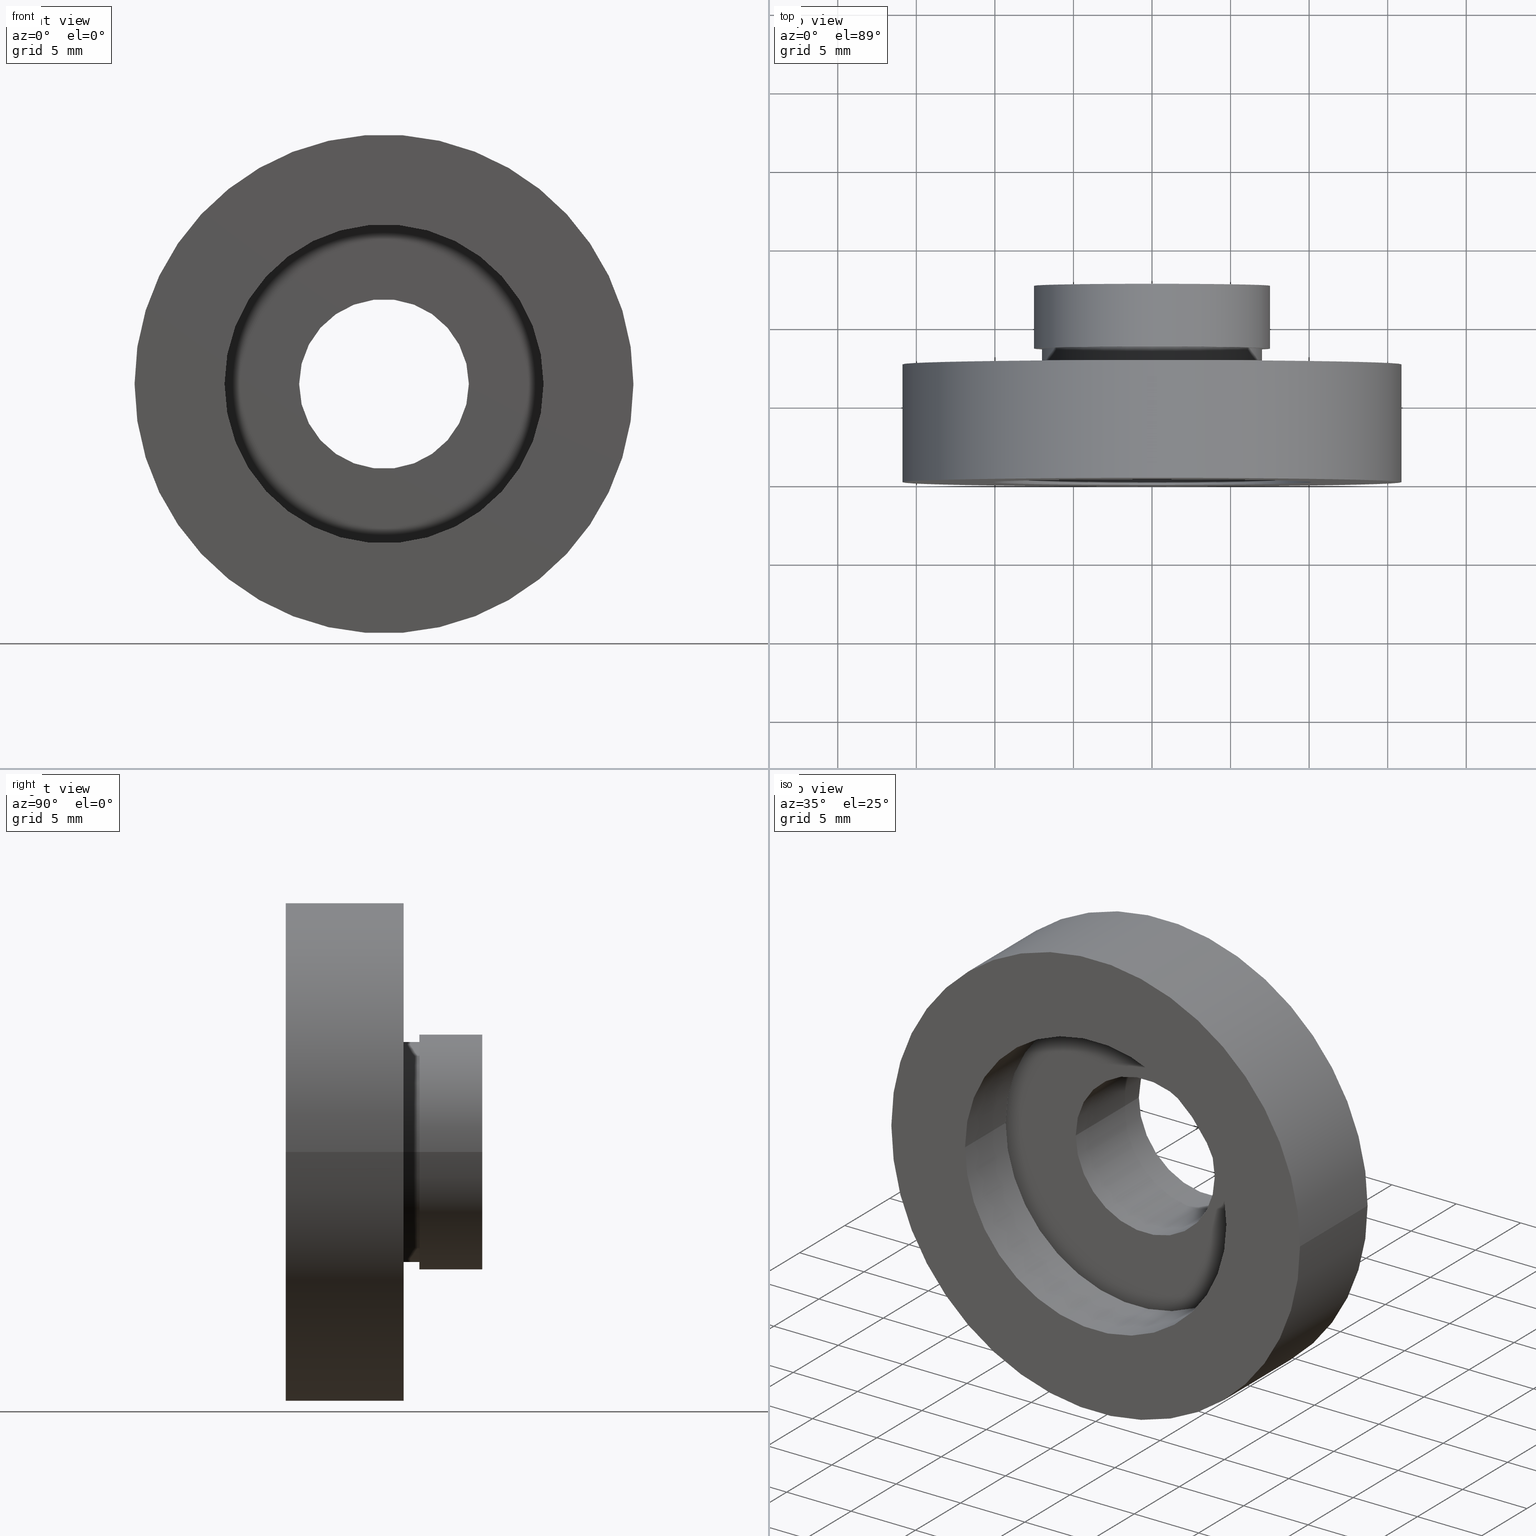
[diagram: canonical four-view strip — front | top / right | iso, engineering-drawing reading convention]
A machine part, canonical four-view strip (front | top / right | iso — engineering-drawing reading convention). The complete STEP part file that produces these views, byte-faithful:
ISO-10303-21;
HEADER;
FILE_DESCRIPTION (( 'STEP AP214' ),
    '1' );
FILE_NAME ('504125.STEP',
    '2019-10-09T01:24:13',
    ( '' ),
    ( '' ),
    'SwSTEP 2.0',
    'SolidWorks 2016',
    '' );
FILE_SCHEMA (( 'AUTOMOTIVE_DESIGN' ));
ENDSEC;

DATA;
#1 = CARTESIAN_POINT ( 'NONE',  ( 1.149455719078122500E-015, 7.500000000000000000, 0.0000000000000000000 ) ) ;
#2 = STYLED_ITEM ( 'NONE', ( #541 ), #199 ) ;
#3 = LINE ( 'NONE', #297, #235 ) ;
#4 = FILL_AREA_STYLE ('',( #527 ) ) ;
#5 = EDGE_LOOP ( 'NONE', ( #48, #357, #81, #155 ) ) ;
#6 = ORIENTED_EDGE ( 'NONE', *, *, #251, .T. ) ;
#7 = DIRECTION ( 'NONE',  ( -1.000000000000000000, -8.545435842250281000E-017, 0.0000000000000000000 ) ) ;
#8 = EDGE_LOOP ( 'NONE', ( #170, #19 ) ) ;
#9 = UNCERTAINTY_MEASURE_WITH_UNIT (LENGTH_MEASURE( 1.000000000000000100E-005 ), #234, 'distance_accuracy_value', 'NONE');
#10 = DIRECTION ( 'NONE',  ( -1.224646799147351000E-016, 1.000000000000000000, -0.0000000000000000000 ) ) ;
#11 = DIRECTION ( 'NONE',  ( -1.224646799147351000E-016, 1.000000000000000000, -0.0000000000000000000 ) ) ;
#12 = CARTESIAN_POINT ( 'NONE',  ( 7.510000000000000700, 8.500000000000000000, 0.0000000000000000000 ) ) ;
#13 = VECTOR ( 'NONE', #211, 1000.000000000000000 ) ;
#14 = ORIENTED_EDGE ( 'NONE', *, *, #287, .T. ) ;
#15 = DIRECTION ( 'NONE',  ( -1.224646799147351000E-016, 1.000000000000000000, 0.0000000000000000000 ) ) ;
#16 = AXIS2_PLACEMENT_3D ( 'NONE', #525, #579, #441 ) ;
#17 = DIRECTION ( 'NONE',  ( -1.000000000000000000, 0.0000000000000000000, 0.0000000000000000000 ) ) ;
#18 = VECTOR ( 'NONE', #553, 1000.000000000000000 ) ;
#19 = ORIENTED_EDGE ( 'NONE', *, *, #299, .F. ) ;
#20 = ORIENTED_EDGE ( 'NONE', *, *, #224, .T. ) ;
#21 = DIRECTION ( 'NONE',  ( -1.224646799147351000E-016, 1.000000000000000000, -0.0000000000000000000 ) ) ;
#22 = CARTESIAN_POINT ( 'NONE',  ( -10.14999999999999900, 4.499999999999994700, 0.0000000000000000000 ) ) ;
#23 = DIRECTION ( 'NONE',  ( -1.224646799147351000E-016, 1.000000000000000000, -0.0000000000000000000 ) ) ;
#24 = PRESENTATION_LAYER_ASSIGNMENT (  '', '', ( #151 ) ) ;
#25 = UNCERTAINTY_MEASURE_WITH_UNIT (LENGTH_MEASURE( 1.000000000000000100E-005 ), #61, 'distance_accuracy_value', 'NONE');
#26 = FACE_OUTER_BOUND ( 'NONE', #540, .T. ) ;
#27 = ORIENTED_EDGE ( 'NONE', *, *, #304, .F. ) ;
#28 = PRESENTATION_STYLE_ASSIGNMENT (( #279 ) ) ;
#29 =( GEOMETRIC_REPRESENTATION_CONTEXT ( 3 ) GLOBAL_UNCERTAINTY_ASSIGNED_CONTEXT ( ( #9 ) ) GLOBAL_UNIT_ASSIGNED_CONTEXT ( ( #234, #576, #624 ) ) REPRESENTATION_CONTEXT ( 'NONE', 'WORKASPACE' ) );
#30 = DIRECTION ( 'NONE',  ( -1.224646799147351000E-016, 1.000000000000000000, -0.0000000000000000000 ) ) ;
#31 =( NAMED_UNIT ( * ) PLANE_ANGLE_UNIT ( ) SI_UNIT ( $, .RADIAN. ) );
#32 = EDGE_CURVE ( 'NONE', #615, #133, #156, .T. ) ;
#33 =( NAMED_UNIT ( * ) SI_UNIT ( $, .STERADIAN. ) SOLID_ANGLE_UNIT ( ) );
#34 = AXIS2_PLACEMENT_3D ( 'NONE', #533, #355, #159 ) ;
#35 = CARTESIAN_POINT ( 'NONE',  ( 13.25000000000000400, 5.499999999999998200, 1.622657008870243100E-015 ) ) ;
#36 = EDGE_LOOP ( 'NONE', ( #250, #454, #408, #181 ) ) ;
#37 = MECHANICAL_DESIGN_GEOMETRIC_PRESENTATION_REPRESENTATION (  '', ( #226 ), #82 ) ;
#38 = DIRECTION ( 'NONE',  ( -1.000000000000000000, -1.224646799147350700E-016, 0.0000000000000000000 ) ) ;
#39 = CARTESIAN_POINT ( 'NONE',  ( 15.87500000000000000, 7.500000000000000000, 1.944126793646423200E-015 ) ) ;
#40 = DIRECTION ( 'NONE',  ( -1.224646799147351000E-016, 1.000000000000000000, -0.0000000000000000000 ) ) ;
#41 = COLOUR_RGB ( '',1.000000000000000000, 1.000000000000000000, 1.000000000000000000 ) ;
#42 = LINE ( 'NONE', #393, #221 ) ;
#43 = VERTEX_POINT ( 'NONE', #39 ) ;
#44 = CARTESIAN_POINT ( 'NONE',  ( 7.510000000000000700, 12.49999999999999800, 9.197097461596621700E-016 ) ) ;
#45 = AXIS2_PLACEMENT_3D ( 'NONE', #144, #432, #582 ) ;
#46 = CIRCLE ( 'NONE', #161, 10.15000000000000000 ) ;
#47 = ADVANCED_FACE ( 'NONE', ( #529, #523 ), #375, .F. ) ;
#48 = ORIENTED_EDGE ( 'NONE', *, *, #287, .F. ) ;
#49 = CIRCLE ( 'NONE', #578, 15.87499999999999600 ) ;
#50 = DIRECTION ( 'NONE',  ( -1.000000000000000000, 0.0000000000000000000, 0.0000000000000000000 ) ) ;
#51 = CARTESIAN_POINT ( 'NONE',  ( 0.0000000000000000000, 16.88601823708207700, 0.0000000000000000000 ) ) ;
#52 = DIRECTION ( 'NONE',  ( -1.000000000000000000, 0.0000000000000000000, 0.0000000000000000000 ) ) ;
#53 = CARTESIAN_POINT ( 'NONE',  ( 15.87500000000000000, 3.061616997868304100E-017, 0.0000000000000000000 ) ) ;
#54 = SURFACE_STYLE_FILL_AREA ( #269 ) ;
#55 = PRODUCT_RELATED_PRODUCT_CATEGORY ( 'part', '', ( #361 ) ) ;
#56 =( NAMED_UNIT ( * ) SI_UNIT ( $, .STERADIAN. ) SOLID_ANGLE_UNIT ( ) );
#57 = ORIENTED_EDGE ( 'NONE', *, *, #604, .T. ) ;
#58 = COLOUR_RGB ( '',1.000000000000000000, 1.000000000000000000, 1.000000000000000000 ) ;
#59 = CARTESIAN_POINT ( 'NONE',  ( 0.0000000000000000000, 16.88601823708207700, 0.0000000000000000000 ) ) ;
#60 = DIRECTION ( 'NONE',  ( -1.224646799147351000E-016, 1.000000000000000000, -0.0000000000000000000 ) ) ;
#61 =( LENGTH_UNIT ( ) NAMED_UNIT ( * ) SI_UNIT ( .MILLI., .METRE. ) );
#62 = STYLED_ITEM ( 'NONE', ( #318 ), #244 ) ;
#63 = FILL_AREA_STYLE ('',( #535 ) ) ;
#64 = CARTESIAN_POINT ( 'NONE',  ( 0.0000000000000000000, 16.88601823708207700, 0.0000000000000000000 ) ) ;
#65 = ORIENTED_EDGE ( 'NONE', *, *, #604, .F. ) ;
#66 = FACE_BOUND ( 'NONE', #80, .T. ) ;
#67 = CARTESIAN_POINT ( 'NONE',  ( -7.509999999999999800, 16.88601823708207700, 0.0000000000000000000 ) ) ;
#68 = VERTEX_POINT ( 'NONE', #514 ) ;
#69 = EDGE_LOOP ( 'NONE', ( #500, #83 ) ) ;
#70 = FILL_AREA_STYLE ('',( #252 ) ) ;
#71 = EDGE_CURVE ( 'NONE', #453, #301, #311, .T. ) ;
#72 = DIRECTION ( 'NONE',  ( 1.224646799147351000E-016, -1.000000000000000000, 0.0000000000000000000 ) ) ;
#73 = ORIENTED_EDGE ( 'NONE', *, *, #129, .F. ) ;
#74 = CARTESIAN_POINT ( 'NONE',  ( 0.0000000000000000000, 16.88601823708207700, 0.0000000000000000000 ) ) ;
#75 = EDGE_CURVE ( 'NONE', #163, #397, #49, .T. ) ;
#76 = CARTESIAN_POINT ( 'NONE',  ( 15.87500000000000000, -1.525320158307194900E-015, 1.944126793646423200E-015 ) ) ;
#77 = STYLED_ITEM ( 'NONE', ( #109 ), #440 ) ;
#78 =( NAMED_UNIT ( * ) SI_UNIT ( $, .STERADIAN. ) SOLID_ANGLE_UNIT ( ) );
#79 = CIRCLE ( 'NONE', #390, 10.15000000000000000 ) ;
#80 = EDGE_LOOP ( 'NONE', ( #20, #127 ) ) ;
#81 = ORIENTED_EDGE ( 'NONE', *, *, #419, .T. ) ;
#82 =( GEOMETRIC_REPRESENTATION_CONTEXT ( 3 ) GLOBAL_UNCERTAINTY_ASSIGNED_CONTEXT ( ( #365 ) ) GLOBAL_UNIT_ASSIGNED_CONTEXT ( ( #135, #178, #136 ) ) REPRESENTATION_CONTEXT ( 'NONE', 'WORKASPACE' ) );
#83 = ORIENTED_EDGE ( 'NONE', *, *, #71, .T. ) ;
#84 = PRESENTATION_STYLE_ASSIGNMENT (( #370 ) ) ;
#85 = SURFACE_SIDE_STYLE ('',( #549 ) ) ;
#86 = CIRCLE ( 'NONE', #430, 13.25000000000000000 ) ;
#87 = ADVANCED_BREP_SHAPE_REPRESENTATION ( '504125', ( #244, #518 ), #515 ) ;
#88 = AXIS2_PLACEMENT_3D ( 'NONE', #198, #106, #488 ) ;
#89 = DIRECTION ( 'NONE',  ( 1.224646799147351000E-016, -1.000000000000000000, 0.0000000000000000000 ) ) ;
#90 = ADVANCED_FACE ( 'NONE', ( #182 ), #613, .T. ) ;
#91 = LINE ( 'NONE', #353, #118 ) ;
#92 = ORIENTED_EDGE ( 'NONE', *, *, #253, .F. ) ;
#93 = EDGE_LOOP ( 'NONE', ( #112, #73 ) ) ;
#94 = MECHANICAL_DESIGN_GEOMETRIC_PRESENTATION_REPRESENTATION (  '', ( #555 ), #552 ) ;
#95 = CARTESIAN_POINT ( 'NONE',  ( 10.15000000000000200, 4.499999999999996400, 1.243016501134563700E-015 ) ) ;
#96 = DIRECTION ( 'NONE',  ( -1.224646799147351000E-016, 1.000000000000000000, -0.0000000000000000000 ) ) ;
#97 = ADVANCED_FACE ( 'NONE', ( #285 ), #379, .T. ) ;
#98 = EDGE_CURVE ( 'NONE', #319, #126, #412, .T. ) ;
#99 = CIRCLE ( 'NONE', #478, 10.15000000000000000 ) ;
#100 = CIRCLE ( 'NONE', #560, 15.87499999999999600 ) ;
#101 = DIRECTION ( 'NONE',  ( -1.000000000000000000, -1.224646799147351000E-016, 0.0000000000000000000 ) ) ;
#102 = FACE_OUTER_BOUND ( 'NONE', #306, .T. ) ;
#103 = ADVANCED_FACE ( 'NONE', ( #508, #369 ), #194, .F. ) ;
#104 = DIRECTION ( 'NONE',  ( -1.224646799147351000E-016, 1.000000000000000000, -0.0000000000000000000 ) ) ;
#105 = CARTESIAN_POINT ( 'NONE',  ( 2.067940818438636100E-015, 0.0000000000000000000, 0.0000000000000000000 ) ) ;
#106 = DIRECTION ( 'NONE',  ( -1.224646799147351000E-016, 1.000000000000000000, -0.0000000000000000000 ) ) ;
#107 = EDGE_CURVE ( 'NONE', #43, #387, #495, .T. ) ;
#108 = DIRECTION ( 'NONE',  ( -1.224646799147351000E-016, 1.000000000000000000, -0.0000000000000000000 ) ) ;
#109 = PRESENTATION_STYLE_ASSIGNMENT (( #509 ) ) ;
#110 =( GEOMETRIC_REPRESENTATION_CONTEXT ( 3 ) GLOBAL_UNCERTAINTY_ASSIGNED_CONTEXT ( ( #321 ) ) GLOBAL_UNIT_ASSIGNED_CONTEXT ( ( #512, #562, #78 ) ) REPRESENTATION_CONTEXT ( 'NONE', 'WORKASPACE' ) );
#111 = CARTESIAN_POINT ( 'NONE',  ( 1.516849758822328500E-015, 4.499999999999995600, 0.0000000000000000000 ) ) ;
#112 = ORIENTED_EDGE ( 'NONE', *, *, #251, .F. ) ;
#113 = SURFACE_STYLE_FILL_AREA ( #4 ) ;
#114 = AXIS2_PLACEMENT_3D ( 'NONE', #569, #40, #376 ) ;
#115 = DIRECTION ( 'NONE',  ( -1.224646799147351000E-016, 1.000000000000000000, -0.0000000000000000000 ) ) ;
#116 = CARTESIAN_POINT ( 'NONE',  ( 5.400000000000000400, 16.88601823708207700, 6.613092715395707500E-016 ) ) ;
#117 = CIRCLE ( 'NONE', #331, 5.400000000000000400 ) ;
#118 = VECTOR ( 'NONE', #203, 1000.000000000000000 ) ;
#119 = ORIENTED_EDGE ( 'NONE', *, *, #172, .T. ) ;
#120 = LINE ( 'NONE', #470, #620 ) ;
#121 =( LENGTH_UNIT ( ) NAMED_UNIT ( * ) SI_UNIT ( .MILLI., .METRE. ) );
#122 = APPLICATION_CONTEXT ( 'automotive_design' ) ;
#123 = PRESENTATION_STYLE_ASSIGNMENT (( #245 ) ) ;
#124 = AXIS2_PLACEMENT_3D ( 'NONE', #551, #72, #314 ) ;
#125 =( LENGTH_UNIT ( ) NAMED_UNIT ( * ) SI_UNIT ( .MILLI., .METRE. ) );
#126 = VERTEX_POINT ( 'NONE', #386 ) ;
#127 = ORIENTED_EDGE ( 'NONE', *, *, #550, .T. ) ;
#128 =( NAMED_UNIT ( * ) SI_UNIT ( $, .STERADIAN. ) SOLID_ANGLE_UNIT ( ) );
#129 = EDGE_CURVE ( 'NONE', #558, #329, #231, .T. ) ;
#130 = AXIS2_PLACEMENT_3D ( 'NONE', #484, #193, #195 ) ;
#131 = LINE ( 'NONE', #595, #401 ) ;
#132 = ORIENTED_EDGE ( 'NONE', *, *, #344, .F. ) ;
#133 = VERTEX_POINT ( 'NONE', #44 ) ;
#134 = AXIS2_PLACEMENT_3D ( 'NONE', #338, #225, #335 ) ;
#135 =( LENGTH_UNIT ( ) NAMED_UNIT ( * ) SI_UNIT ( .MILLI., .METRE. ) );
#136 =( NAMED_UNIT ( * ) SI_UNIT ( $, .STERADIAN. ) SOLID_ANGLE_UNIT ( ) );
#137 = UNCERTAINTY_MEASURE_WITH_UNIT (LENGTH_MEASURE( 1.000000000000000100E-005 ), #125, 'distance_accuracy_value', 'NONE');
#138 = CIRCLE ( 'NONE', #380, 5.400000000000000400 ) ;
#139 = CARTESIAN_POINT ( 'NONE',  ( -13.24999999999999800, 5.499999999999994700, 0.0000000000000000000 ) ) ;
#140 = EDGE_LOOP ( 'NONE', ( #325, #477, #187, #342 ) ) ;
#141 = AXIS2_PLACEMENT_3D ( 'NONE', #59, #305, #351 ) ;
#142 = AXIS2_PLACEMENT_3D ( 'NONE', #1, #382, #190 ) ;
#143 = CARTESIAN_POINT ( 'NONE',  ( 10.15000000000000000, 16.88601823708207700, 1.243016501134563700E-015 ) ) ;
#144 = CARTESIAN_POINT ( 'NONE',  ( 1.394385078907593200E-015, 5.499999999999996400, 0.0000000000000000000 ) ) ;
#145 = COLOUR_RGB ( '',1.000000000000000000, 1.000000000000000000, 1.000000000000000000 ) ;
#146 = CARTESIAN_POINT ( 'NONE',  ( 5.400000000000002100, 5.499999999999996400, 0.0000000000000000000 ) ) ;
#147 = EDGE_LOOP ( 'NONE', ( #310, #368 ) ) ;
#148 = ORIENTED_EDGE ( 'NONE', *, *, #236, .F. ) ;
#149 = CARTESIAN_POINT ( 'NONE',  ( 1.026991039163387500E-015, 8.500000000000000000, 0.0000000000000000000 ) ) ;
#150 = DIRECTION ( 'NONE',  ( -1.224646799147351000E-016, 1.000000000000000000, -0.0000000000000000000 ) ) ;
#151 = STYLED_ITEM ( 'NONE', ( #402 ), #87 ) ;
#152 = DIRECTION ( 'NONE',  ( -1.000000000000000000, -1.224646799147351000E-016, 0.0000000000000000000 ) ) ;
#153 = CYLINDRICAL_SURFACE ( 'NONE', #602, 10.15000000000000000 ) ;
#154 = CIRCLE ( 'NONE', #415, 5.400000000000000400 ) ;
#155 = ORIENTED_EDGE ( 'NONE', *, *, #460, .T. ) ;
#156 = CIRCLE ( 'NONE', #165, 7.509999999999999800 ) ;
#157 = CARTESIAN_POINT ( 'NONE',  ( -7.509999999999998900, 12.49999999999999500, 0.0000000000000000000 ) ) ;
#158 = PRESENTATION_LAYER_ASSIGNMENT (  '', '', ( #451 ) ) ;
#159 = DIRECTION ( 'NONE',  ( -1.000000000000000000, -1.092739197465705300E-016, 0.0000000000000000000 ) ) ;
#160 = DIRECTION ( 'NONE',  ( -1.000000000000000000, -1.309225264888156400E-016, 0.0000000000000000000 ) ) ;
#161 = AXIS2_PLACEMENT_3D ( 'NONE', #105, #492, #101 ) ;
#162 = ORIENTED_EDGE ( 'NONE', *, *, #313, .T. ) ;
#163 = VERTEX_POINT ( 'NONE', #233 ) ;
#164 = CARTESIAN_POINT ( 'NONE',  ( -13.24999999999999800, 16.88601823708207700, 0.0000000000000000000 ) ) ;
#165 = AXIS2_PLACEMENT_3D ( 'NONE', #332, #570, #431 ) ;
#166 = CARTESIAN_POINT ( 'NONE',  ( 0.0000000000000000000, 16.88601823708207700, 0.0000000000000000000 ) ) ;
#167 = EDGE_CURVE ( 'NONE', #559, #277, #120, .T. ) ;
#168 = CARTESIAN_POINT ( 'NONE',  ( -5.400000000000000400, 16.88601823708207700, 0.0000000000000000000 ) ) ;
#169 = LINE ( 'NONE', #168, #179 ) ;
#170 = ORIENTED_EDGE ( 'NONE', *, *, #186, .F. ) ;
#171 = FILL_AREA_STYLE_COLOUR ( '', #41 ) ;
#172 = EDGE_CURVE ( 'NONE', #257, #266, #227, .T. ) ;
#173 = CARTESIAN_POINT ( 'NONE',  ( 5.371323195044475300E-016, 12.49999999999999600, 0.0000000000000000000 ) ) ;
#174 = FILL_AREA_STYLE_COLOUR ( '', #577 ) ;
#175 = EDGE_CURVE ( 'NONE', #301, #453, #483, .T. ) ;
#176 = CLOSED_SHELL ( 'NONE', ( #593, #97, #90, #440, #191, #438, #471, #199, #47, #475, #103, #343, #389, #526, #242, #586, #286, #485 ) ) ;
#177 = EDGE_LOOP ( 'NONE', ( #280, #258 ) ) ;
#178 =( NAMED_UNIT ( * ) PLANE_ANGLE_UNIT ( ) SI_UNIT ( $, .RADIAN. ) );
#179 = VECTOR ( 'NONE', #366, 1000.000000000000000 ) ;
#180 = DIRECTION ( 'NONE',  ( 1.000000000000000000, 1.224646799147351000E-016, 0.0000000000000000000 ) ) ;
#181 = ORIENTED_EDGE ( 'NONE', *, *, #273, .T. ) ;
#182 = FACE_OUTER_BOUND ( 'NONE', #507, .T. ) ;
#183 = MECHANICAL_DESIGN_GEOMETRIC_PRESENTATION_REPRESENTATION (  '', ( #451 ), #218 ) ;
#184 = DIRECTION ( 'NONE',  ( -1.224646799147351000E-016, 1.000000000000000000, -0.0000000000000000000 ) ) ;
#185 = PRESENTATION_STYLE_ASSIGNMENT (( #214 ) ) ;
#186 = EDGE_CURVE ( 'NONE', #68, #208, #467, .T. ) ;
#187 = ORIENTED_EDGE ( 'NONE', *, *, #568, .T. ) ;
#188 = VERTEX_POINT ( 'NONE', #95 ) ;
#189 = PRODUCT_DEFINITION ( 'δ֪', '', #270, #510 ) ;
#190 = DIRECTION ( 'NONE',  ( -1.000000000000000000, -1.239088197126290800E-016, 0.0000000000000000000 ) ) ;
#191 = ADVANCED_FACE ( 'NONE', ( #102 ), #473, .F. ) ;
#192 = DIRECTION ( 'NONE',  ( -1.224646799147351000E-016, 1.000000000000000000, -0.0000000000000000000 ) ) ;
#193 = DIRECTION ( 'NONE',  ( -1.224646799147351000E-016, 1.000000000000000000, -0.0000000000000000000 ) ) ;
#194 = PLANE ( 'NONE',  #336 ) ;
#195 = DIRECTION ( 'NONE',  ( -1.000000000000000000, 0.0000000000000000000, 0.0000000000000000000 ) ) ;
#196 = FACE_OUTER_BOUND ( 'NONE', #600, .T. ) ;
#197 = VECTOR ( 'NONE', #531, 1000.000000000000000 ) ;
#198 = CARTESIAN_POINT ( 'NONE',  ( 1.026991039163387700E-015, 8.499999999999998200, 0.0000000000000000000 ) ) ;
#199 = ADVANCED_FACE ( 'NONE', ( #362 ), #426, .F. ) ;
#200 = ORIENTED_EDGE ( 'NONE', *, *, #213, .F. ) ;
#201 =( LENGTH_UNIT ( ) NAMED_UNIT ( * ) SI_UNIT ( .MILLI., .METRE. ) );
#202 = EDGE_CURVE ( 'NONE', #126, #319, #481, .T. ) ;
#203 = DIRECTION ( 'NONE',  ( -1.224646799147351000E-016, 1.000000000000000000, -0.0000000000000000000 ) ) ;
#204 = CARTESIAN_POINT ( 'NONE',  ( 5.371323195044475300E-016, 12.49999999999999600, 0.0000000000000000000 ) ) ;
#205 = EDGE_CURVE ( 'NONE', #494, #222, #283, .T. ) ;
#206 = CARTESIAN_POINT ( 'NONE',  ( 5.400000000000001200, 12.49999999999999600, 6.613092715395707500E-016 ) ) ;
#207 = SURFACE_STYLE_FILL_AREA ( #70 ) ;
#208 = VERTEX_POINT ( 'NONE', #346 ) ;
#209 = DIRECTION ( 'NONE',  ( -1.224646799147351000E-016, 1.000000000000000000, -0.0000000000000000000 ) ) ;
#210 = EDGE_CURVE ( 'NONE', #558, #133, #42, .T. ) ;
#211 = DIRECTION ( 'NONE',  ( -1.224646799147351000E-016, 1.000000000000000000, -0.0000000000000000000 ) ) ;
#212 = ORIENTED_EDGE ( 'NONE', *, *, #299, .T. ) ;
#213 = EDGE_CURVE ( 'NONE', #397, #43, #91, .T. ) ;
#214 = SURFACE_STYLE_USAGE ( .BOTH. , #216 ) ;
#215 = CIRCLE ( 'NONE', #521, 7.000000000000000000 ) ;
#216 = SURFACE_SIDE_STYLE ('',( #207 ) ) ;
#217 = DIRECTION ( 'NONE',  ( 1.224646799147351000E-016, -1.000000000000000000, 0.0000000000000000000 ) ) ;
#218 =( GEOMETRIC_REPRESENTATION_CONTEXT ( 3 ) GLOBAL_UNCERTAINTY_ASSIGNED_CONTEXT ( ( #429 ) ) GLOBAL_UNIT_ASSIGNED_CONTEXT ( ( #121, #498, #407 ) ) REPRESENTATION_CONTEXT ( 'NONE', 'WORKASPACE' ) );
#219 = FILL_AREA_STYLE ('',( #174 ) ) ;
#220 = CARTESIAN_POINT ( 'NONE',  ( 13.25000000000000000, 4.499999999999997300, 1.622657008870242700E-015 ) ) ;
#221 = VECTOR ( 'NONE', #150, 1000.000000000000000 ) ;
#222 = VERTEX_POINT ( 'NONE', #396 ) ;
#223 = APPLICATION_PROTOCOL_DEFINITION ( 'draft international standard', 'automotive_design', 1998, #413 ) ;
#224 = EDGE_CURVE ( 'NONE', #559, #300, #589, .T. ) ;
#225 = DIRECTION ( 'NONE',  ( -1.224646799147351000E-016, 1.000000000000000000, -0.0000000000000000000 ) ) ;
#226 = STYLED_ITEM ( 'NONE', ( #28 ), #90 ) ;
#227 = CIRCLE ( 'NONE', #45, 13.25000000000000000 ) ;
#228 = EDGE_CURVE ( 'NONE', #277, #188, #79, .T. ) ;
#229 = CARTESIAN_POINT ( 'NONE',  ( 2.067940818438636500E-015, -3.469446951953614200E-015, 0.0000000000000000000 ) ) ;
#230 = ORIENTED_EDGE ( 'NONE', *, *, #224, .F. ) ;
#231 = CIRCLE ( 'NONE', #622, 7.509999999999999800 ) ;
#232 = AXIS2_PLACEMENT_3D ( 'NONE', #434, #476, #295 ) ;
#233 = CARTESIAN_POINT ( 'NONE',  ( -15.87499999999999300, -5.413573745600033100E-015, 0.0000000000000000000 ) ) ;
#234 =( LENGTH_UNIT ( ) NAMED_UNIT ( * ) SI_UNIT ( .MILLI., .METRE. ) );
#235 = VECTOR ( 'NONE', #447, 1000.000000000000000 ) ;
#236 = EDGE_CURVE ( 'NONE', #208, #319, #3, .T. ) ;
#237 = ORIENTED_EDGE ( 'NONE', *, *, #460, .F. ) ;
#238 = ORIENTED_EDGE ( 'NONE', *, *, #210, .T. ) ;
#239 = DIRECTION ( 'NONE',  ( -1.224646799147351000E-016, 1.000000000000000000, -0.0000000000000000000 ) ) ;
#240 = ORIENTED_EDGE ( 'NONE', *, *, #513, .F. ) ;
#241 = CARTESIAN_POINT ( 'NONE',  ( 0.0000000000000000000, 16.88601823708207700, 0.0000000000000000000 ) ) ;
#242 = ADVANCED_FACE ( 'NONE', ( #275, #547 ), #248, .F. ) ;
#243 = SURFACE_SIDE_STYLE ('',( #572 ) ) ;
#244 = MANIFOLD_SOLID_BREP ( '��ת1', #176 ) ;
#245 = SURFACE_STYLE_USAGE ( .BOTH. , #293 ) ;
#246 = CARTESIAN_POINT ( 'NONE',  ( 2.067940818438636100E-015, 0.0000000000000000000, 0.0000000000000000000 ) ) ;
#247 = LINE ( 'NONE', #609, #469 ) ;
#248 = PLANE ( 'NONE',  #424 ) ;
#249 = ORIENTED_EDGE ( 'NONE', *, *, #228, .T. ) ;
#250 = ORIENTED_EDGE ( 'NONE', *, *, #546, .F. ) ;
#251 = EDGE_CURVE ( 'NONE', #329, #558, #463, .T. ) ;
#252 = FILL_AREA_STYLE_COLOUR ( '', #341 ) ;
#253 = EDGE_CURVE ( 'NONE', #300, #188, #538, .T. ) ;
#254 = CARTESIAN_POINT ( 'NONE',  ( -13.24999999999999600, 4.499999999999993800, 0.0000000000000000000 ) ) ;
#255 = CYLINDRICAL_SURFACE ( 'NONE', #130, 7.000000000000000000 ) ;
#256 = DIRECTION ( 'NONE',  ( -1.224646799147351000E-016, 1.000000000000000000, -0.0000000000000000000 ) ) ;
#257 = VERTEX_POINT ( 'NONE', #35 ) ;
#258 = ORIENTED_EDGE ( 'NONE', *, *, #98, .T. ) ;
#259 = DIRECTION ( 'NONE',  ( -1.000000000000000000, -2.309884788251407900E-016, 0.0000000000000000000 ) ) ;
#260 = AXIS2_PLACEMENT_3D ( 'NONE', #278, #89, #180 ) ;
#261 = MECHANICAL_DESIGN_GEOMETRIC_PRESENTATION_REPRESENTATION (  '', ( #62 ), #395 ) ;
#262 = DIRECTION ( 'NONE',  ( -1.000000000000000000, 0.0000000000000000000, 0.0000000000000000000 ) ) ;
#263 = COLOUR_RGB ( '',1.000000000000000000, 1.000000000000000000, 1.000000000000000000 ) ;
#264 = CYLINDRICAL_SURFACE ( 'NONE', #474, 5.400000000000000400 ) ;
#265 = DIRECTION ( 'NONE',  ( -1.224646799147351000E-016, 1.000000000000000000, -0.0000000000000000000 ) ) ;
#266 = VERTEX_POINT ( 'NONE', #139 ) ;
#267 = EDGE_LOOP ( 'NONE', ( #619, #388 ) ) ;
#268 = SURFACE_SIDE_STYLE ('',( #274 ) ) ;
#269 = FILL_AREA_STYLE ('',( #171 ) ) ;
#270 = PRODUCT_DEFINITION_FORMATION_WITH_SPECIFIED_SOURCE ( '�κ�', '', #361, .NOT_KNOWN. ) ;
#271 = DIRECTION ( 'NONE',  ( 0.0000000000000000000, 0.0000000000000000000, 1.000000000000000000 ) ) ;
#272 =( NAMED_UNIT ( * ) SI_UNIT ( $, .STERADIAN. ) SOLID_ANGLE_UNIT ( ) );
#273 = EDGE_CURVE ( 'NONE', #266, #257, #86, .T. ) ;
#274 = SURFACE_STYLE_FILL_AREA ( #219 ) ;
#275 = FACE_OUTER_BOUND ( 'NONE', #93, .T. ) ;
#276 = ORIENTED_EDGE ( 'NONE', *, *, #339, .T. ) ;
#277 = VERTEX_POINT ( 'NONE', #22 ) ;
#278 = CARTESIAN_POINT ( 'NONE',  ( 10.15000000000000200, 4.499999999999997300, 0.0000000000000000000 ) ) ;
#279 = SURFACE_STYLE_USAGE ( .BOTH. , #85 ) ;
#280 = ORIENTED_EDGE ( 'NONE', *, *, #202, .T. ) ;
#281 = AXIS2_PLACEMENT_3D ( 'NONE', #74, #265, #557 ) ;
#282 = CARTESIAN_POINT ( 'NONE',  ( 0.0000000000000000000, 16.88601823708207700, 0.0000000000000000000 ) ) ;
#283 = CIRCLE ( 'NONE', #294, 5.400000000000000400 ) ;
#284 = ORIENTED_EDGE ( 'NONE', *, *, #107, .F. ) ;
#285 = FACE_OUTER_BOUND ( 'NONE', #612, .T. ) ;
#286 = ADVANCED_FACE ( 'NONE', ( #445, #556 ), #456, .F. ) ;
#287 = EDGE_CURVE ( 'NONE', #583, #494, #452, .T. ) ;
#288 = DIRECTION ( 'NONE',  ( -1.000000000000000000, 0.0000000000000000000, 0.0000000000000000000 ) ) ;
#289 = FACE_OUTER_BOUND ( 'NONE', #466, .T. ) ;
#290 = MECHANICAL_DESIGN_GEOMETRIC_PRESENTATION_REPRESENTATION (  '', ( #77 ), #110 ) ;
#291 = EDGE_LOOP ( 'NONE', ( #465, #623 ) ) ;
#292 = DIRECTION ( 'NONE',  ( -1.000000000000000000, -2.309884788251407900E-016, 0.0000000000000000000 ) ) ;
#293 = SURFACE_SIDE_STYLE ('',( #480 ) ) ;
#294 = AXIS2_PLACEMENT_3D ( 'NONE', #204, #10, #539 ) ;
#295 = DIRECTION ( 'NONE',  ( -1.000000000000000000, -1.309225264888156400E-016, 0.0000000000000000000 ) ) ;
#296 = DIRECTION ( 'NONE',  ( -1.000000000000000000, 0.0000000000000000000, 0.0000000000000000000 ) ) ;
#297 = CARTESIAN_POINT ( 'NONE',  ( 7.000000000000000000, 16.88601823708207700, 8.572527594031473200E-016 ) ) ;
#298 = DIRECTION ( 'NONE',  ( -1.000000000000000000, -1.224646799147351000E-016, 0.0000000000000000000 ) ) ;
#299 = EDGE_CURVE ( 'NONE', #208, #68, #215, .T. ) ;
#300 = VERTEX_POINT ( 'NONE', #307 ) ;
#301 = VERTEX_POINT ( 'NONE', #254 ) ;
#302 = DIRECTION ( 'NONE',  ( -1.000000000000000000, 0.0000000000000000000, 0.0000000000000000000 ) ) ;
#303 = FILL_AREA_STYLE_COLOUR ( '', #263 ) ;
#304 = EDGE_CURVE ( 'NONE', #397, #163, #100, .T. ) ;
#305 = DIRECTION ( 'NONE',  ( -1.224646799147351000E-016, 1.000000000000000000, -0.0000000000000000000 ) ) ;
#306 = EDGE_LOOP ( 'NONE', ( #421, #516, #119, #132 ) ) ;
#307 = CARTESIAN_POINT ( 'NONE',  ( 10.15000000000000200, 1.243016501134561300E-015, 1.243016501134563700E-015 ) ) ;
#308 = SURFACE_STYLE_FILL_AREA ( #320 ) ;
#309 = LINE ( 'NONE', #67, #418 ) ;
#310 = ORIENTED_EDGE ( 'NONE', *, *, #513, .T. ) ;
#311 = CIRCLE ( 'NONE', #134, 13.24999999999999800 ) ;
#312 = CARTESIAN_POINT ( 'NONE',  ( 5.400000000000001200, 12.49999999999999600, 0.0000000000000000000 ) ) ;
#313 = EDGE_CURVE ( 'NONE', #133, #615, #618, .T. ) ;
#314 = DIRECTION ( 'NONE',  ( 1.000000000000000000, 1.224646799147351000E-016, 0.0000000000000000000 ) ) ;
#315 = CARTESIAN_POINT ( 'NONE',  ( 7.000000000000000900, 8.500000000000000000, 8.572527594031473200E-016 ) ) ;
#316 = DIRECTION ( 'NONE',  ( -1.224646799147351000E-016, 1.000000000000000000, -0.0000000000000000000 ) ) ;
#317 = CYLINDRICAL_SURFACE ( 'NONE', #385, 7.509999999999999800 ) ;
#318 = PRESENTATION_STYLE_ASSIGNMENT (( #592 ) ) ;
#319 = VERTEX_POINT ( 'NONE', #315 ) ;
#320 = FILL_AREA_STYLE ('',( #461 ) ) ;
#321 = UNCERTAINTY_MEASURE_WITH_UNIT (LENGTH_MEASURE( 1.000000000000000100E-005 ), #512, 'distance_accuracy_value', 'NONE');
#322 = DIRECTION ( 'NONE',  ( -1.224646799147351000E-016, 1.000000000000000000, -0.0000000000000000000 ) ) ;
#323 = AXIS2_PLACEMENT_3D ( 'NONE', #246, #443, #491 ) ;
#324 = DIRECTION ( 'NONE',  ( -1.000000000000000000, 0.0000000000000000000, 0.0000000000000000000 ) ) ;
#325 = ORIENTED_EDGE ( 'NONE', *, *, #550, .F. ) ;
#326 = FACE_OUTER_BOUND ( 'NONE', #140, .T. ) ;
#327 = FACE_OUTER_BOUND ( 'NONE', #5, .T. ) ;
#328 = ORIENTED_EDGE ( 'NONE', *, *, #186, .T. ) ;
#329 = VERTEX_POINT ( 'NONE', #496 ) ;
#330 = APPLICATION_PROTOCOL_DEFINITION ( 'draft international standard', 'automotive_design', 1998, #122 ) ;
#331 = AXIS2_PLACEMENT_3D ( 'NONE', #173, #30, #262 ) ;
#332 = CARTESIAN_POINT ( 'NONE',  ( 5.371323195044473300E-016, 12.49999999999999600, 0.0000000000000000000 ) ) ;
#333 = AXIS2_PLACEMENT_3D ( 'NONE', #340, #192, #50 ) ;
#334 = CYLINDRICAL_SURFACE ( 'NONE', #281, 5.400000000000000400 ) ;
#335 = DIRECTION ( 'NONE',  ( -1.000000000000000000, -1.309225264888156400E-016, 0.0000000000000000000 ) ) ;
#336 = AXIS2_PLACEMENT_3D ( 'NONE', #146, #534, #587 ) ;
#337 = DIRECTION ( 'NONE',  ( -1.000000000000000000, 0.0000000000000000000, 0.0000000000000000000 ) ) ;
#338 = CARTESIAN_POINT ( 'NONE',  ( 1.516849758822328500E-015, 4.499999999999995600, 0.0000000000000000000 ) ) ;
#339 = EDGE_CURVE ( 'NONE', #329, #615, #309, .T. ) ;
#340 = CARTESIAN_POINT ( 'NONE',  ( 0.0000000000000000000, 16.88601823708207700, 0.0000000000000000000 ) ) ;
#341 = COLOUR_RGB ( '',1.000000000000000000, 1.000000000000000000, 1.000000000000000000 ) ;
#342 = ORIENTED_EDGE ( 'NONE', *, *, #167, .F. ) ;
#343 = ADVANCED_FACE ( 'NONE', ( #327 ), #264, .F. ) ;
#344 = EDGE_CURVE ( 'NONE', #301, #266, #520, .T. ) ;
#345 = PRODUCT_DEFINITION_SHAPE ( 'NONE', 'NONE',  #189 ) ;
#346 = CARTESIAN_POINT ( 'NONE',  ( 7.000000000000000900, 7.500000000000000900, 8.572527594031473200E-016 ) ) ;
#347 = CYLINDRICAL_SURFACE ( 'NONE', #590, 15.87500000000000000 ) ;
#348 = CARTESIAN_POINT ( 'NONE',  ( 1.026991039163387700E-015, 8.499999999999998200, 0.0000000000000000000 ) ) ;
#349 =( NAMED_UNIT ( * ) SI_UNIT ( $, .STERADIAN. ) SOLID_ANGLE_UNIT ( ) );
#350 =( LENGTH_UNIT ( ) NAMED_UNIT ( * ) SI_UNIT ( .MILLI., .METRE. ) );
#351 = DIRECTION ( 'NONE',  ( -1.000000000000000000, -2.185478394931410600E-016, 0.0000000000000000000 ) ) ;
#352 =( NAMED_UNIT ( * ) PLANE_ANGLE_UNIT ( ) SI_UNIT ( $, .RADIAN. ) );
#353 = CARTESIAN_POINT ( 'NONE',  ( 15.87500000000000000, 16.88601823708208000, 1.944126793646423200E-015 ) ) ;
#354 = CIRCLE ( 'NONE', #34, 15.87500000000000000 ) ;
#355 = DIRECTION ( 'NONE',  ( -1.224646799147351000E-016, 1.000000000000000000, -0.0000000000000000000 ) ) ;
#356 = ORIENTED_EDGE ( 'NONE', *, *, #213, .T. ) ;
#357 = ORIENTED_EDGE ( 'NONE', *, *, #383, .F. ) ;
#358 = PLANE ( 'NONE',  #433 ) ;
#359 = CARTESIAN_POINT ( 'NONE',  ( 2.067940818438636500E-015, -3.469446951953614200E-015, 0.0000000000000000000 ) ) ;
#360 = PRESENTATION_LAYER_ASSIGNMENT (  '', '', ( #457 ) ) ;
#361 = PRODUCT ( '504125', '504125', '', ( #563 ) ) ;
#362 = FACE_OUTER_BOUND ( 'NONE', #517, .T. ) ;
#363 = CARTESIAN_POINT ( 'NONE',  ( 1.394385078907593200E-015, 5.499999999999996400, 0.0000000000000000000 ) ) ;
#364 = PRESENTATION_LAYER_ASSIGNMENT (  '', '', ( #62 ) ) ;
#365 = UNCERTAINTY_MEASURE_WITH_UNIT (LENGTH_MEASURE( 1.000000000000000100E-005 ), #135, 'distance_accuracy_value', 'NONE');
#366 = DIRECTION ( 'NONE',  ( -1.224646799147351000E-016, 1.000000000000000000, -0.0000000000000000000 ) ) ;
#367 = EDGE_CURVE ( 'NONE', #583, #501, #138, .T. ) ;
#368 = ORIENTED_EDGE ( 'NONE', *, *, #107, .T. ) ;
#369 = FACE_BOUND ( 'NONE', #291, .T. ) ;
#370 = SURFACE_STYLE_USAGE ( .BOTH. , #414 ) ;
#371 = AXIS2_PLACEMENT_3D ( 'NONE', #282, #468, #337 ) ;
#372 = DIRECTION ( 'NONE',  ( 1.000000000000000000, 0.0000000000000000000, 0.0000000000000000000 ) ) ;
#373 = EDGE_LOOP ( 'NONE', ( #446, #581 ) ) ;
#374 = ORIENTED_EDGE ( 'NONE', *, *, #236, .T. ) ;
#375 = PLANE ( 'NONE',  #260 ) ;
#376 = DIRECTION ( 'NONE',  ( -1.000000000000000000, 0.0000000000000000000, 0.0000000000000000000 ) ) ;
#377 = FACE_OUTER_BOUND ( 'NONE', #36, .T. ) ;
#378 = ORIENTED_EDGE ( 'NONE', *, *, #75, .F. ) ;
#379 = CYLINDRICAL_SURFACE ( 'NONE', #371, 7.000000000000000000 ) ;
#380 = AXIS2_PLACEMENT_3D ( 'NONE', #400, #455, #497 ) ;
#381 = ORIENTED_EDGE ( 'NONE', *, *, #304, .T. ) ;
#382 = DIRECTION ( 'NONE',  ( -1.224646799147351000E-016, 1.000000000000000000, -0.0000000000000000000 ) ) ;
#383 = EDGE_CURVE ( 'NONE', #501, #583, #154, .T. ) ;
#384 = FACE_OUTER_BOUND ( 'NONE', #436, .T. ) ;
#385 = AXIS2_PLACEMENT_3D ( 'NONE', #64, #594, #296 ) ;
#386 = CARTESIAN_POINT ( 'NONE',  ( -6.999999999999999100, 8.500000000000000000, 0.0000000000000000000 ) ) ;
#387 = VERTEX_POINT ( 'NONE', #554 ) ;
#388 = ORIENTED_EDGE ( 'NONE', *, *, #568, .F. ) ;
#389 = ADVANCED_FACE ( 'NONE', ( #506, #26 ), #358, .F. ) ;
#390 = AXIS2_PLACEMENT_3D ( 'NONE', #111, #60, #543 ) ;
#391 = DIRECTION ( 'NONE',  ( -1.224646799147351000E-016, 1.000000000000000000, -0.0000000000000000000 ) ) ;
#392 = CARTESIAN_POINT ( 'NONE',  ( 13.24999999999999800, 16.88601823708207700, 1.622657008870242700E-015 ) ) ;
#393 = CARTESIAN_POINT ( 'NONE',  ( 7.509999999999999800, 16.88601823708207700, 9.197097461596621700E-016 ) ) ;
#394 = DIRECTION ( 'NONE',  ( -1.000000000000000000, -2.185478394931410600E-016, 0.0000000000000000000 ) ) ;
#395 =( GEOMETRIC_REPRESENTATION_CONTEXT ( 3 ) GLOBAL_UNCERTAINTY_ASSIGNED_CONTEXT ( ( #537 ) ) GLOBAL_UNIT_ASSIGNED_CONTEXT ( ( #350, #352, #56 ) ) REPRESENTATION_CONTEXT ( 'NONE', 'WORKASPACE' ) );
#396 = CARTESIAN_POINT ( 'NONE',  ( -5.399999999999999500, 12.49999999999999600, 0.0000000000000000000 ) ) ;
#397 = VERTEX_POINT ( 'NONE', #76 ) ;
#398 = FILL_AREA_STYLE ('',( #303 ) ) ;
#399 = CARTESIAN_POINT ( 'NONE',  ( -10.14999999999999900, -1.243016501134561300E-015, 0.0000000000000000000 ) ) ;
#400 = CARTESIAN_POINT ( 'NONE',  ( 1.394385078907593000E-015, 5.499999999999998200, 0.0000000000000000000 ) ) ;
#401 = VECTOR ( 'NONE', #536, 1000.000000000000000 ) ;
#402 = PRESENTATION_STYLE_ASSIGNMENT (( #565 ) ) ;
#403 = AXIS2_PLACEMENT_3D ( 'NONE', #479, #184, #288 ) ;
#404 = ORIENTED_EDGE ( 'NONE', *, *, #75, .T. ) ;
#405 = ORIENTED_EDGE ( 'NONE', *, *, #167, .T. ) ;
#406 = CARTESIAN_POINT ( 'NONE',  ( 1.149455719078122500E-015, 7.500000000000000000, 0.0000000000000000000 ) ) ;
#407 =( NAMED_UNIT ( * ) SI_UNIT ( $, .STERADIAN. ) SOLID_ANGLE_UNIT ( ) );
#408 = ORIENTED_EDGE ( 'NONE', *, *, #344, .T. ) ;
#409 = COLOUR_RGB ( '',1.000000000000000000, 1.000000000000000000, 1.000000000000000000 ) ;
#410 = DIRECTION ( 'NONE',  ( -1.224646799147351000E-016, 1.000000000000000000, -0.0000000000000000000 ) ) ;
#411 = ORIENTED_EDGE ( 'NONE', *, *, #462, .T. ) ;
#412 = CIRCLE ( 'NONE', #614, 7.000000000000000000 ) ;
#413 = APPLICATION_CONTEXT ( 'automotive_design' ) ;
#414 = SURFACE_SIDE_STYLE ('',( #54 ) ) ;
#415 = AXIS2_PLACEMENT_3D ( 'NONE', #601, #209, #564 ) ;
#416 = DIRECTION ( 'NONE',  ( 1.000000000000000000, 1.224646799147351000E-016, 0.0000000000000000000 ) ) ;
#417 = CYLINDRICAL_SURFACE ( 'NONE', #141, 15.87500000000000000 ) ;
#418 = VECTOR ( 'NONE', #115, 1000.000000000000000 ) ;
#419 = EDGE_CURVE ( 'NONE', #501, #222, #169, .T. ) ;
#420 = EDGE_LOOP ( 'NONE', ( #378, #27 ) ) ;
#421 = ORIENTED_EDGE ( 'NONE', *, *, #71, .F. ) ;
#422 = PRESENTATION_LAYER_ASSIGNMENT (  '', '', ( #555 ) ) ;
#423 = FILL_AREA_STYLE ('',( #519 ) ) ;
#424 = AXIS2_PLACEMENT_3D ( 'NONE', #12, #597, #152 ) ;
#425 = ORIENTED_EDGE ( 'NONE', *, *, #419, .F. ) ;
#426 = CYLINDRICAL_SURFACE ( 'NONE', #333, 10.15000000000000000 ) ;
#427 = ORIENTED_EDGE ( 'NONE', *, *, #129, .T. ) ;
#428 = ORIENTED_EDGE ( 'NONE', *, *, #32, .T. ) ;
#429 = UNCERTAINTY_MEASURE_WITH_UNIT (LENGTH_MEASURE( 1.000000000000000100E-005 ), #121, 'distance_accuracy_value', 'NONE');
#430 = AXIS2_PLACEMENT_3D ( 'NONE', #363, #23, #160 ) ;
#431 = DIRECTION ( 'NONE',  ( -1.000000000000000000, -2.309884788251407900E-016, 0.0000000000000000000 ) ) ;
#432 = DIRECTION ( 'NONE',  ( -1.224646799147351000E-016, 1.000000000000000000, -0.0000000000000000000 ) ) ;
#433 = AXIS2_PLACEMENT_3D ( 'NONE', #312, #217, #416 ) ;
#434 = CARTESIAN_POINT ( 'NONE',  ( 1.516849758822328500E-015, 4.499999999999995600, 0.0000000000000000000 ) ) ;
#435 = EDGE_LOOP ( 'NONE', ( #237, #573 ) ) ;
#436 = EDGE_LOOP ( 'NONE', ( #148, #212, #411, #472 ) ) ;
#437 = EDGE_LOOP ( 'NONE', ( #200, #381, #57, #284 ) ) ;
#438 = ADVANCED_FACE ( 'NONE', ( #326 ), #153, .F. ) ;
#439 = PRESENTATION_LAYER_ASSIGNMENT (  '', '', ( #2 ) ) ;
#440 = ADVANCED_FACE ( 'NONE', ( #571 ), #334, .F. ) ;
#441 = DIRECTION ( 'NONE',  ( -1.000000000000000000, -1.092739197465705300E-016, 0.0000000000000000000 ) ) ;
#442 = CARTESIAN_POINT ( 'NONE',  ( 5.400000000000002100, 5.499999999999999100, 6.613092715395707500E-016 ) ) ;
#443 = DIRECTION ( 'NONE',  ( -1.224646799147351000E-016, 1.000000000000000000, -0.0000000000000000000 ) ) ;
#444 = VECTOR ( 'NONE', #108, 1000.000000000000000 ) ;
#445 = FACE_BOUND ( 'NONE', #8, .T. ) ;
#446 = ORIENTED_EDGE ( 'NONE', *, *, #273, .F. ) ;
#447 = DIRECTION ( 'NONE',  ( -1.224646799147351000E-016, 1.000000000000000000, -0.0000000000000000000 ) ) ;
#448 = ORIENTED_EDGE ( 'NONE', *, *, #205, .T. ) ;
#449 = CARTESIAN_POINT ( 'NONE',  ( 1.026991039163387500E-015, 8.500000000000000000, 0.0000000000000000000 ) ) ;
#450 = CARTESIAN_POINT ( 'NONE',  ( -5.399999999999998600, 5.499999999999997300, 0.0000000000000000000 ) ) ;
#451 = STYLED_ITEM ( 'NONE', ( #185 ), #343 ) ;
#452 = LINE ( 'NONE', #116, #18 ) ;
#453 = VERTEX_POINT ( 'NONE', #220 ) ;
#454 = ORIENTED_EDGE ( 'NONE', *, *, #175, .F. ) ;
#455 = DIRECTION ( 'NONE',  ( -1.224646799147351000E-016, 1.000000000000000000, -0.0000000000000000000 ) ) ;
#456 = PLANE ( 'NONE',  #124 ) ;
#457 = STYLED_ITEM ( 'NONE', ( #123 ), #526 ) ;
#458 = CYLINDRICAL_SURFACE ( 'NONE', #610, 13.24999999999999800 ) ;
#459 = MECHANICAL_DESIGN_GEOMETRIC_PRESENTATION_REPRESENTATION (  '', ( #151 ), #486 ) ;
#460 = EDGE_CURVE ( 'NONE', #222, #494, #117, .T. ) ;
#461 = FILL_AREA_STYLE_COLOUR ( '', #409 ) ;
#462 = EDGE_CURVE ( 'NONE', #68, #126, #247, .T. ) ;
#463 = CIRCLE ( 'NONE', #88, 7.509999999999999800 ) ;
#464 = SURFACE_SIDE_STYLE ('',( #308 ) ) ;
#465 = ORIENTED_EDGE ( 'NONE', *, *, #383, .T. ) ;
#466 = EDGE_LOOP ( 'NONE', ( #404, #356, #240, #65 ) ) ;
#467 = CIRCLE ( 'NONE', #142, 7.000000000000000000 ) ;
#468 = DIRECTION ( 'NONE',  ( -1.224646799147351000E-016, 1.000000000000000000, -0.0000000000000000000 ) ) ;
#469 = VECTOR ( 'NONE', #322, 1000.000000000000000 ) ;
#470 = CARTESIAN_POINT ( 'NONE',  ( -10.15000000000000000, 16.88601823708207700, 0.0000000000000000000 ) ) ;
#471 = ADVANCED_FACE ( 'NONE', ( #617, #66 ), #607, .F. ) ;
#472 = ORIENTED_EDGE ( 'NONE', *, *, #98, .F. ) ;
#473 = CYLINDRICAL_SURFACE ( 'NONE', #403, 13.24999999999999800 ) ;
#474 = AXIS2_PLACEMENT_3D ( 'NONE', #166, #503, #17 ) ;
#475 = ADVANCED_FACE ( 'NONE', ( #377 ), #458, .F. ) ;
#476 = DIRECTION ( 'NONE',  ( -1.224646799147351000E-016, 1.000000000000000000, -0.0000000000000000000 ) ) ;
#477 = ORIENTED_EDGE ( 'NONE', *, *, #253, .T. ) ;
#478 = AXIS2_PLACEMENT_3D ( 'NONE', #542, #544, #7 ) ;
#479 = CARTESIAN_POINT ( 'NONE',  ( 0.0000000000000000000, 16.88601823708207700, 0.0000000000000000000 ) ) ;
#480 = SURFACE_STYLE_FILL_AREA ( #398 ) ;
#481 = CIRCLE ( 'NONE', #530, 7.000000000000000000 ) ;
#482 = ORIENTED_EDGE ( 'NONE', *, *, #462, .F. ) ;
#483 = CIRCLE ( 'NONE', #232, 13.24999999999999800 ) ;
#484 = CARTESIAN_POINT ( 'NONE',  ( 0.0000000000000000000, 16.88601823708207700, 0.0000000000000000000 ) ) ;
#485 = ADVANCED_FACE ( 'NONE', ( #505 ), #347, .T. ) ;
#486 =( GEOMETRIC_REPRESENTATION_CONTEXT ( 3 ) GLOBAL_UNCERTAINTY_ASSIGNED_CONTEXT ( ( #608 ) ) GLOBAL_UNIT_ASSIGNED_CONTEXT ( ( #511, #611, #33 ) ) REPRESENTATION_CONTEXT ( 'NONE', 'WORKASPACE' ) );
#487 = DIRECTION ( 'NONE',  ( -1.224646799147351000E-016, 1.000000000000000000, -0.0000000000000000000 ) ) ;
#488 = DIRECTION ( 'NONE',  ( -1.000000000000000000, -2.309884788251407900E-016, 0.0000000000000000000 ) ) ;
#489 =( NAMED_UNIT ( * ) PLANE_ANGLE_UNIT ( ) SI_UNIT ( $, .RADIAN. ) );
#490 = PRESENTATION_LAYER_ASSIGNMENT (  '', '', ( #226 ) ) ;
#491 = DIRECTION ( 'NONE',  ( -1.000000000000000000, -1.224646799147351000E-016, 0.0000000000000000000 ) ) ;
#492 = DIRECTION ( 'NONE',  ( -1.224646799147351000E-016, 1.000000000000000000, -0.0000000000000000000 ) ) ;
#493 = SHAPE_DEFINITION_REPRESENTATION ( #345, #87 ) ;
#494 = VERTEX_POINT ( 'NONE', #206 ) ;
#495 = CIRCLE ( 'NONE', #16, 15.87500000000000000 ) ;
#496 = CARTESIAN_POINT ( 'NONE',  ( -7.509999999999998900, 8.499999999999996400, 0.0000000000000000000 ) ) ;
#497 = DIRECTION ( 'NONE',  ( -1.000000000000000000, -1.606225440719265600E-016, 0.0000000000000000000 ) ) ;
#498 =( NAMED_UNIT ( * ) PLANE_ANGLE_UNIT ( ) SI_UNIT ( $, .RADIAN. ) );
#499 = MECHANICAL_DESIGN_GEOMETRIC_PRESENTATION_REPRESENTATION (  '', ( #2 ), #29 ) ;
#500 = ORIENTED_EDGE ( 'NONE', *, *, #175, .T. ) ;
#501 = VERTEX_POINT ( 'NONE', #450 ) ;
#502 = CARTESIAN_POINT ( 'NONE',  ( 5.371323195044473300E-016, 12.49999999999999600, 0.0000000000000000000 ) ) ;
#503 = DIRECTION ( 'NONE',  ( -1.224646799147351000E-016, 1.000000000000000000, -0.0000000000000000000 ) ) ;
#504 =( NAMED_UNIT ( * ) PLANE_ANGLE_UNIT ( ) SI_UNIT ( $, .RADIAN. ) );
#505 = FACE_OUTER_BOUND ( 'NONE', #437, .T. ) ;
#506 = FACE_BOUND ( 'NONE', #435, .T. ) ;
#507 = EDGE_LOOP ( 'NONE', ( #6, #238, #528, #599 ) ) ;
#508 = FACE_OUTER_BOUND ( 'NONE', #373, .T. ) ;
#509 = SURFACE_STYLE_USAGE ( .BOTH. , #464 ) ;
#510 = PRODUCT_DEFINITION_CONTEXT ( 'detailed design', #122, 'design' ) ;
#511 =( LENGTH_UNIT ( ) NAMED_UNIT ( * ) SI_UNIT ( .MILLI., .METRE. ) );
#512 =( LENGTH_UNIT ( ) NAMED_UNIT ( * ) SI_UNIT ( .MILLI., .METRE. ) );
#513 = EDGE_CURVE ( 'NONE', #387, #43, #354, .T. ) ;
#514 = CARTESIAN_POINT ( 'NONE',  ( -6.999999999999999100, 7.499999999999999100, 0.0000000000000000000 ) ) ;
#515 =( GEOMETRIC_REPRESENTATION_CONTEXT ( 3 ) GLOBAL_UNCERTAINTY_ASSIGNED_CONTEXT ( ( #25 ) ) GLOBAL_UNIT_ASSIGNED_CONTEXT ( ( #61, #31, #272 ) ) REPRESENTATION_CONTEXT ( 'NONE', 'WORKASPACE' ) );
#516 = ORIENTED_EDGE ( 'NONE', *, *, #546, .T. ) ;
#517 = EDGE_LOOP ( 'NONE', ( #92, #230, #405, #249 ) ) ;
#518 = AXIS2_PLACEMENT_3D ( 'NONE', #561, #271, #372 ) ;
#519 = FILL_AREA_STYLE_COLOUR ( '', #58 ) ;
#520 = LINE ( 'NONE', #164, #13 ) ;
#521 = AXIS2_PLACEMENT_3D ( 'NONE', #406, #256, #606 ) ;
#522 = ORIENTED_EDGE ( 'NONE', *, *, #202, .F. ) ;
#523 = FACE_OUTER_BOUND ( 'NONE', #69, .T. ) ;
#524 = SURFACE_STYLE_USAGE ( .BOTH. , #532 ) ;
#525 = CARTESIAN_POINT ( 'NONE',  ( 1.149455719078122700E-015, 7.499999999999998200, 0.0000000000000000000 ) ) ;
#526 = ADVANCED_FACE ( 'NONE', ( #196 ), #317, .T. ) ;
#527 = FILL_AREA_STYLE_COLOUR ( '', #605 ) ;
#528 = ORIENTED_EDGE ( 'NONE', *, *, #32, .F. ) ;
#529 = FACE_BOUND ( 'NONE', #267, .T. ) ;
#530 = AXIS2_PLACEMENT_3D ( 'NONE', #449, #104, #302 ) ;
#531 = DIRECTION ( 'NONE',  ( -1.224646799147351000E-016, 1.000000000000000000, -0.0000000000000000000 ) ) ;
#532 = SURFACE_SIDE_STYLE ('',( #113 ) ) ;
#533 = CARTESIAN_POINT ( 'NONE',  ( 1.149455719078122700E-015, 7.499999999999998200, 0.0000000000000000000 ) ) ;
#534 = DIRECTION ( 'NONE',  ( -1.224646799147351000E-016, 1.000000000000000000, 0.0000000000000000000 ) ) ;
#535 = FILL_AREA_STYLE_COLOUR ( '', #145 ) ;
#536 = DIRECTION ( 'NONE',  ( -1.224646799147351000E-016, 1.000000000000000000, -0.0000000000000000000 ) ) ;
#537 = UNCERTAINTY_MEASURE_WITH_UNIT (LENGTH_MEASURE( 1.000000000000000100E-005 ), #350, 'distance_accuracy_value', 'NONE');
#538 = LINE ( 'NONE', #143, #197 ) ;
#539 = DIRECTION ( 'NONE',  ( -1.000000000000000000, 0.0000000000000000000, 0.0000000000000000000 ) ) ;
#540 = EDGE_LOOP ( 'NONE', ( #428, #162 ) ) ;
#541 = PRESENTATION_STYLE_ASSIGNMENT (( #524 ) ) ;
#542 = CARTESIAN_POINT ( 'NONE',  ( 1.516849758822328500E-015, 4.499999999999995600, 0.0000000000000000000 ) ) ;
#543 = DIRECTION ( 'NONE',  ( -1.000000000000000000, -8.545435842250281000E-017, 0.0000000000000000000 ) ) ;
#544 = DIRECTION ( 'NONE',  ( -1.224646799147351000E-016, 1.000000000000000000, -0.0000000000000000000 ) ) ;
#545 = CARTESIAN_POINT ( 'NONE',  ( 0.0000000000000000000, 16.88601823708207700, 0.0000000000000000000 ) ) ;
#546 = EDGE_CURVE ( 'NONE', #453, #257, #588, .T. ) ;
#547 = FACE_BOUND ( 'NONE', #177, .T. ) ;
#548 = EDGE_LOOP ( 'NONE', ( #580, #14, #448, #425 ) ) ;
#549 = SURFACE_STYLE_FILL_AREA ( #423 ) ;
#550 = EDGE_CURVE ( 'NONE', #300, #559, #46, .T. ) ;
#551 = CARTESIAN_POINT ( 'NONE',  ( 7.000000000000000900, 7.499999999999999100, 0.0000000000000000000 ) ) ;
#552 =( GEOMETRIC_REPRESENTATION_CONTEXT ( 3 ) GLOBAL_UNCERTAINTY_ASSIGNED_CONTEXT ( ( #137 ) ) GLOBAL_UNIT_ASSIGNED_CONTEXT ( ( #125, #504, #128 ) ) REPRESENTATION_CONTEXT ( 'NONE', 'WORKASPACE' ) );
#553 = DIRECTION ( 'NONE',  ( -1.224646799147351000E-016, 1.000000000000000000, -0.0000000000000000000 ) ) ;
#554 = CARTESIAN_POINT ( 'NONE',  ( -15.87500000000000000, 7.499999999999996400, 0.0000000000000000000 ) ) ;
#555 = STYLED_ITEM ( 'NONE', ( #84 ), #438 ) ;
#556 = FACE_OUTER_BOUND ( 'NONE', #147, .T. ) ;
#557 = DIRECTION ( 'NONE',  ( -1.000000000000000000, 0.0000000000000000000, 0.0000000000000000000 ) ) ;
#558 = VERTEX_POINT ( 'NONE', #598 ) ;
#559 = VERTEX_POINT ( 'NONE', #399 ) ;
#560 = AXIS2_PLACEMENT_3D ( 'NONE', #359, #316, #603 ) ;
#561 = CARTESIAN_POINT ( 'NONE',  ( 0.0000000000000000000, 0.0000000000000000000, 0.0000000000000000000 ) ) ;
#562 =( NAMED_UNIT ( * ) PLANE_ANGLE_UNIT ( ) SI_UNIT ( $, .RADIAN. ) );
#563 = PRODUCT_CONTEXT ( 'NONE', #413, 'mechanical' ) ;
#564 = DIRECTION ( 'NONE',  ( -1.000000000000000000, -1.606225440719265600E-016, 0.0000000000000000000 ) ) ;
#565 = SURFACE_STYLE_USAGE ( .BOTH. , #268 ) ;
#566 = ORIENTED_EDGE ( 'NONE', *, *, #210, .F. ) ;
#567 = ORIENTED_EDGE ( 'NONE', *, *, #313, .F. ) ;
#568 = EDGE_CURVE ( 'NONE', #188, #277, #99, .T. ) ;
#569 = CARTESIAN_POINT ( 'NONE',  ( 0.0000000000000000000, 16.88601823708207700, 0.0000000000000000000 ) ) ;
#570 = DIRECTION ( 'NONE',  ( -1.224646799147351000E-016, 1.000000000000000000, -0.0000000000000000000 ) ) ;
#571 = FACE_OUTER_BOUND ( 'NONE', #548, .T. ) ;
#572 = SURFACE_STYLE_FILL_AREA ( #63 ) ;
#573 = ORIENTED_EDGE ( 'NONE', *, *, #205, .F. ) ;
#574 = PRESENTATION_LAYER_ASSIGNMENT (  '', '', ( #77 ) ) ;
#575 = DIRECTION ( 'NONE',  ( -1.224646799147351000E-016, 1.000000000000000000, -0.0000000000000000000 ) ) ;
#576 =( NAMED_UNIT ( * ) PLANE_ANGLE_UNIT ( ) SI_UNIT ( $, .RADIAN. ) );
#577 = COLOUR_RGB ( '',1.000000000000000000, 1.000000000000000000, 1.000000000000000000 ) ;
#578 = AXIS2_PLACEMENT_3D ( 'NONE', #229, #575, #38 ) ;
#579 = DIRECTION ( 'NONE',  ( -1.224646799147351000E-016, 1.000000000000000000, -0.0000000000000000000 ) ) ;
#580 = ORIENTED_EDGE ( 'NONE', *, *, #367, .F. ) ;
#581 = ORIENTED_EDGE ( 'NONE', *, *, #172, .F. ) ;
#582 = DIRECTION ( 'NONE',  ( -1.000000000000000000, -1.309225264888156400E-016, 0.0000000000000000000 ) ) ;
#583 = VERTEX_POINT ( 'NONE', #442 ) ;
#584 =( GEOMETRIC_REPRESENTATION_CONTEXT ( 3 ) GLOBAL_UNCERTAINTY_ASSIGNED_CONTEXT ( ( #591 ) ) GLOBAL_UNIT_ASSIGNED_CONTEXT ( ( #201, #489, #349 ) ) REPRESENTATION_CONTEXT ( 'NONE', 'WORKASPACE' ) );
#585 = DIRECTION ( 'NONE',  ( -1.000000000000000000, 0.0000000000000000000, 0.0000000000000000000 ) ) ;
#586 = ADVANCED_FACE ( 'NONE', ( #384 ), #255, .T. ) ;
#587 = DIRECTION ( 'NONE',  ( -1.000000000000000000, -1.224646799147351000E-016, 0.0000000000000000000 ) ) ;
#588 = LINE ( 'NONE', #392, #444 ) ;
#589 = CIRCLE ( 'NONE', #323, 10.15000000000000000 ) ;
#590 = AXIS2_PLACEMENT_3D ( 'NONE', #241, #11, #394 ) ;
#591 = UNCERTAINTY_MEASURE_WITH_UNIT (LENGTH_MEASURE( 1.000000000000000100E-005 ), #201, 'distance_accuracy_value', 'NONE');
#592 = SURFACE_STYLE_USAGE ( .BOTH. , #243 ) ;
#593 = ADVANCED_FACE ( 'NONE', ( #289 ), #417, .T. ) ;
#594 = DIRECTION ( 'NONE',  ( -1.224646799147351000E-016, 1.000000000000000000, -0.0000000000000000000 ) ) ;
#595 = CARTESIAN_POINT ( 'NONE',  ( -15.87500000000000000, 16.88601823708207300, 0.0000000000000000000 ) ) ;
#596 = AXIS2_PLACEMENT_3D ( 'NONE', #502, #21, #259 ) ;
#597 = DIRECTION ( 'NONE',  ( -1.224646799147351000E-016, 1.000000000000000000, 0.0000000000000000000 ) ) ;
#598 = CARTESIAN_POINT ( 'NONE',  ( 7.510000000000000700, 8.500000000000000000, 9.197097461596621700E-016 ) ) ;
#599 = ORIENTED_EDGE ( 'NONE', *, *, #339, .F. ) ;
#600 = EDGE_LOOP ( 'NONE', ( #566, #427, #276, #567 ) ) ;
#601 = CARTESIAN_POINT ( 'NONE',  ( 1.394385078907593000E-015, 5.499999999999998200, 0.0000000000000000000 ) ) ;
#602 = AXIS2_PLACEMENT_3D ( 'NONE', #545, #410, #324 ) ;
#603 = DIRECTION ( 'NONE',  ( -1.000000000000000000, -1.224646799147350700E-016, 0.0000000000000000000 ) ) ;
#604 = EDGE_CURVE ( 'NONE', #163, #387, #131, .T. ) ;
#605 = COLOUR_RGB ( '',1.000000000000000000, 1.000000000000000000, 1.000000000000000000 ) ;
#606 = DIRECTION ( 'NONE',  ( -1.000000000000000000, -1.239088197126290800E-016, 0.0000000000000000000 ) ) ;
#607 = PLANE ( 'NONE',  #616 ) ;
#608 = UNCERTAINTY_MEASURE_WITH_UNIT (LENGTH_MEASURE( 1.000000000000000100E-005 ), #511, 'distance_accuracy_value', 'NONE');
#609 = CARTESIAN_POINT ( 'NONE',  ( -7.000000000000000000, 16.88601823708207700, 0.0000000000000000000 ) ) ;
#610 = AXIS2_PLACEMENT_3D ( 'NONE', #51, #487, #585 ) ;
#611 =( NAMED_UNIT ( * ) PLANE_ANGLE_UNIT ( ) SI_UNIT ( $, .RADIAN. ) );
#612 = EDGE_LOOP ( 'NONE', ( #328, #374, #522, #482 ) ) ;
#613 = CYLINDRICAL_SURFACE ( 'NONE', #114, 7.509999999999999800 ) ;
#614 = AXIS2_PLACEMENT_3D ( 'NONE', #149, #239, #52 ) ;
#615 = VERTEX_POINT ( 'NONE', #157 ) ;
#616 = AXIS2_PLACEMENT_3D ( 'NONE', #53, #15, #298 ) ;
#617 = FACE_OUTER_BOUND ( 'NONE', #420, .T. ) ;
#618 = CIRCLE ( 'NONE', #596, 7.509999999999999800 ) ;
#619 = ORIENTED_EDGE ( 'NONE', *, *, #228, .F. ) ;
#620 = VECTOR ( 'NONE', #96, 1000.000000000000000 ) ;
#621 = MECHANICAL_DESIGN_GEOMETRIC_PRESENTATION_REPRESENTATION (  '', ( #457 ), #584 ) ;
#622 = AXIS2_PLACEMENT_3D ( 'NONE', #348, #391, #292 ) ;
#623 = ORIENTED_EDGE ( 'NONE', *, *, #367, .T. ) ;
#624 =( NAMED_UNIT ( * ) SI_UNIT ( $, .STERADIAN. ) SOLID_ANGLE_UNIT ( ) );
ENDSEC;
END-ISO-10303-21;
